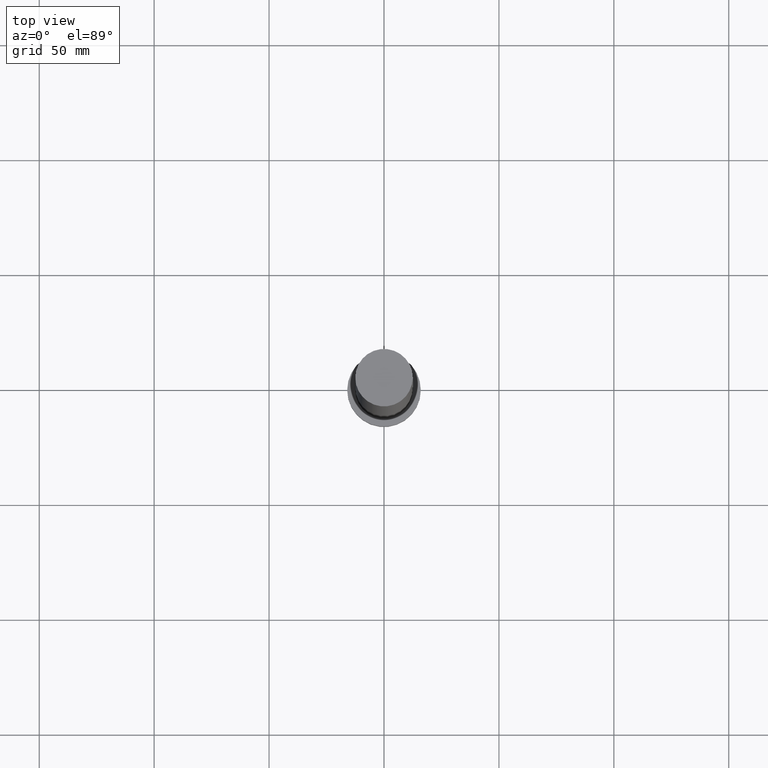
[diagram: clean part render]
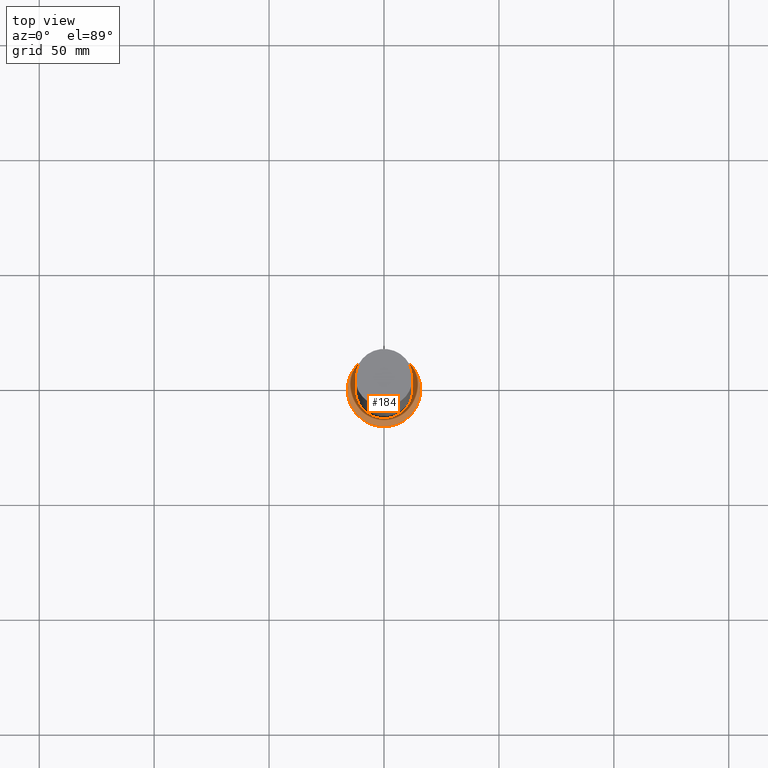
[diagram: same view with one face highlighted and labeled with its STEP entity id]
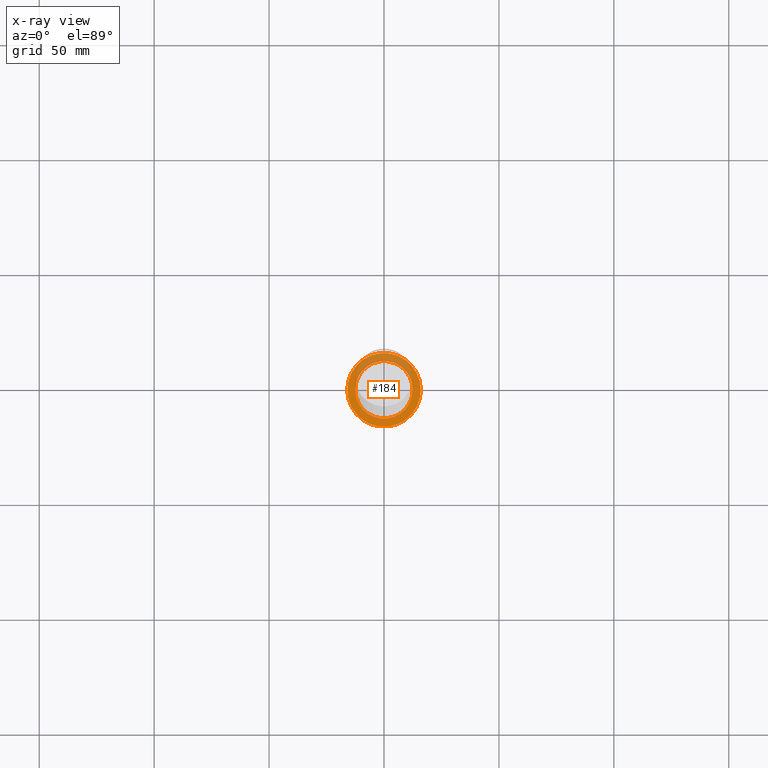
[diagram: x-ray of the same camera — body ghosted, the highlighted face saturated]
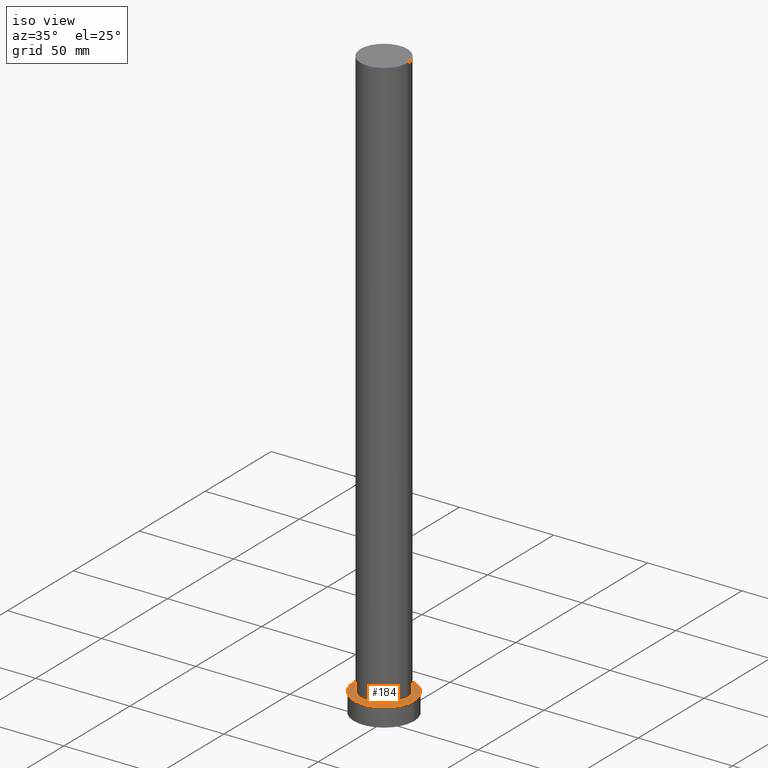
[diagram: same view with one face highlighted and labeled with its STEP entity id]
A machine part, top view. The second image highlights one B-rep face of the part: STEP entity #184.
The next image is the same camera in x-ray: the body ghosted, the highlighted face saturated — about 34% of this face is hidden behind the body in this view.
A second angle (iso view) of the same face is appended — the face is thin or edge-on in the first view.
In plain terms, the highlighted planar face has unit normal (0, 0, 1).
Its self-contained STEP definition (entity closure, byte-faithful):
#2 = CIRCLE ( 'NONE', #165, 12.50000000000000000 ) ;
#6 = CARTESIAN_POINT ( 'NONE',  ( -12.50000000000000000, 0.000000000000000000, 10.00000000000000000 ) ) ;
#8 = FACE_BOUND ( 'NONE', #28, .T. ) ;
#17 = CIRCLE ( 'NONE', #178, 16.00000000000000000 ) ;
#27 = VERTEX_POINT ( 'NONE', #6 ) ;
#28 = EDGE_LOOP ( 'NONE', ( #107, #162 ) ) ;
#35 = CARTESIAN_POINT ( 'NONE',  ( -16.00000000000000000, 0.000000000000000000, 10.00000000000000000 ) ) ;
#41 = DIRECTION ( 'NONE',  ( 0.000000000000000000, 0.000000000000000000, 1.000000000000000000 ) ) ;
#50 = ORIENTED_EDGE ( 'NONE', *, *, #249, .T. ) ;
#57 = PLANE ( 'NONE',  #183 ) ;
#68 = EDGE_CURVE ( 'NONE', #27, #111, #2, .T. ) ;
#70 = DIRECTION ( 'NONE',  ( 1.000000000000000000, 0.000000000000000000, 0.000000000000000000 ) ) ;
#92 = CARTESIAN_POINT ( 'NONE',  ( 0.000000000000000000, 0.000000000000000000, 10.00000000000000000 ) ) ;
#98 = CARTESIAN_POINT ( 'NONE',  ( 12.50000000000000000, 1.530808498934191521E-15, 10.00000000000000000 ) ) ;
#102 = DIRECTION ( 'NONE',  ( 1.000000000000000000, 0.000000000000000000, 0.000000000000000000 ) ) ;
#107 = ORIENTED_EDGE ( 'NONE', *, *, #68, .F. ) ;
#109 = EDGE_LOOP ( 'NONE', ( #203, #50 ) ) ;
#111 = VERTEX_POINT ( 'NONE', #98 ) ;
#157 = AXIS2_PLACEMENT_3D ( 'NONE', #247, #194, #102 ) ;
#159 = DIRECTION ( 'NONE',  ( 1.000000000000000000, 0.000000000000000000, -0.000000000000000000 ) ) ;
#160 = VERTEX_POINT ( 'NONE', #35 ) ;
#162 = ORIENTED_EDGE ( 'NONE', *, *, #229, .F. ) ;
#165 = AXIS2_PLACEMENT_3D ( 'NONE', #192, #187, #223 ) ;
#166 = AXIS2_PLACEMENT_3D ( 'NONE', #177, #253, #70 ) ;
#167 = VERTEX_POINT ( 'NONE', #211 ) ;
#172 = FACE_OUTER_BOUND ( 'NONE', #109, .T. ) ;
#177 = CARTESIAN_POINT ( 'NONE',  ( 0.000000000000000000, 0.000000000000000000, 10.00000000000000000 ) ) ;
#178 = AXIS2_PLACEMENT_3D ( 'NONE', #221, #180, #217 ) ;
#180 = DIRECTION ( 'NONE',  ( 0.000000000000000000, 0.000000000000000000, 1.000000000000000000 ) ) ;
#183 = AXIS2_PLACEMENT_3D ( 'NONE', #92, #41, #159 ) ;
#184 = ADVANCED_FACE ( 'NONE', ( #8, #172 ), #57, .T. ) ;
#187 = DIRECTION ( 'NONE',  ( 0.000000000000000000, 0.000000000000000000, 1.000000000000000000 ) ) ;
#192 = CARTESIAN_POINT ( 'NONE',  ( 0.000000000000000000, 0.000000000000000000, 10.00000000000000000 ) ) ;
#194 = DIRECTION ( 'NONE',  ( 0.000000000000000000, 0.000000000000000000, 1.000000000000000000 ) ) ;
#203 = ORIENTED_EDGE ( 'NONE', *, *, #235, .T. ) ;
#211 = CARTESIAN_POINT ( 'NONE',  ( 16.00000000000000000, 1.959434878635765131E-15, 10.00000000000000000 ) ) ;
#217 = DIRECTION ( 'NONE',  ( 1.000000000000000000, 0.000000000000000000, 0.000000000000000000 ) ) ;
#221 = CARTESIAN_POINT ( 'NONE',  ( 0.000000000000000000, 0.000000000000000000, 10.00000000000000000 ) ) ;
#223 = DIRECTION ( 'NONE',  ( 1.000000000000000000, 0.000000000000000000, 0.000000000000000000 ) ) ;
#228 = CIRCLE ( 'NONE', #166, 16.00000000000000000 ) ;
#229 = EDGE_CURVE ( 'NONE', #111, #27, #231, .T. ) ;
#231 = CIRCLE ( 'NONE', #157, 12.50000000000000000 ) ;
#235 = EDGE_CURVE ( 'NONE', #160, #167, #228, .T. ) ;
#247 = CARTESIAN_POINT ( 'NONE',  ( 0.000000000000000000, 0.000000000000000000, 10.00000000000000000 ) ) ;
#249 = EDGE_CURVE ( 'NONE', #167, #160, #17, .T. ) ;
#253 = DIRECTION ( 'NONE',  ( 0.000000000000000000, 0.000000000000000000, 1.000000000000000000 ) ) ;